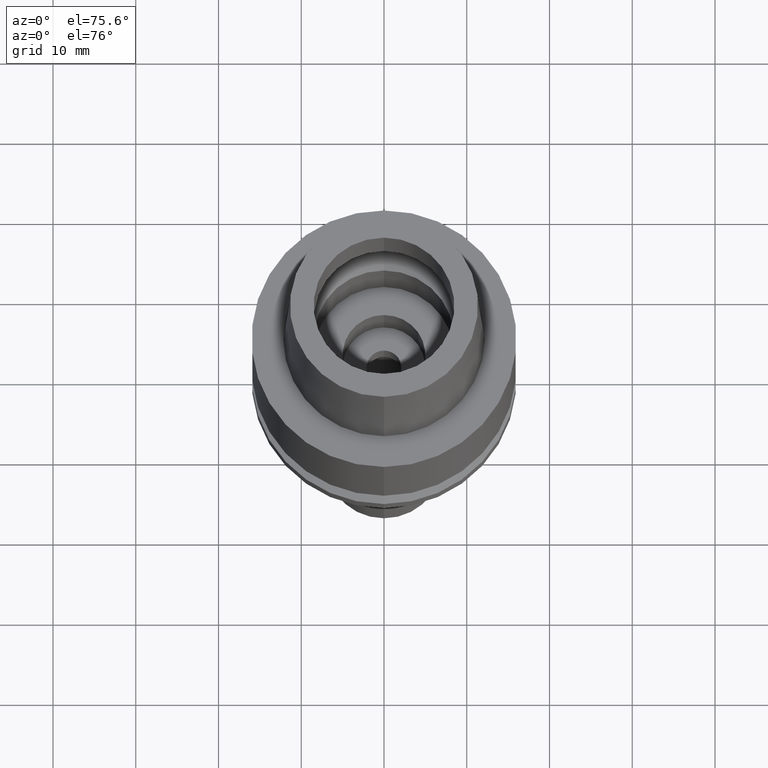
[diagram: clean part render]
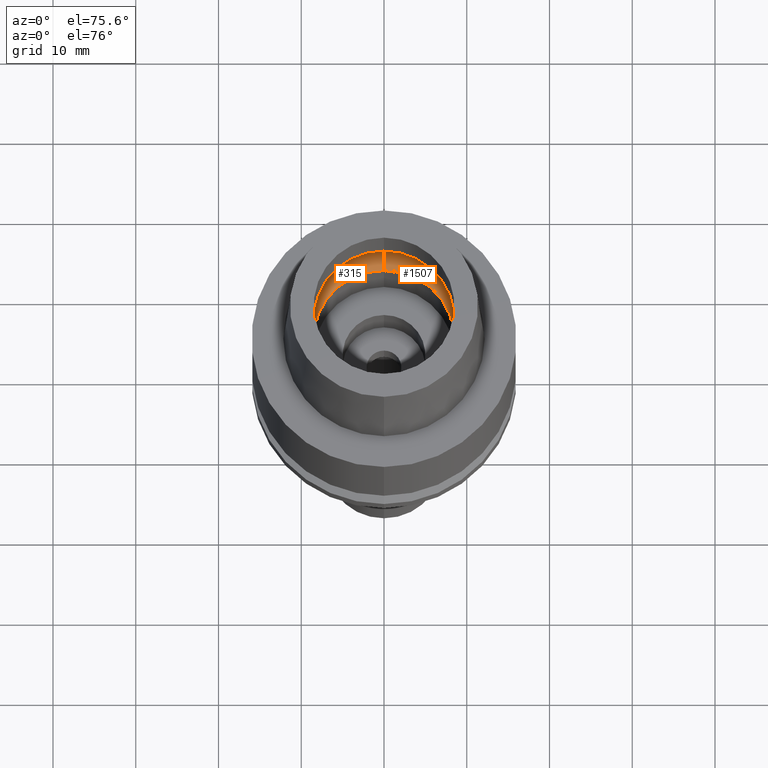
[diagram: same view with one multi-face feature highlighted, each face labeled with its STEP entity id]
A machine part, auxiliary view. The highlighted faces form ONE feature: a constant-radius fillet chain: 2 tangent blend faces with common blend radius 4 mm. The faces share edges in the B-rep.
Their STEP definitions:
[1] entity #315 (Torus):
#6 = DIRECTION ( 'NONE',  ( 0.0000000000000000000, 1.000000000000000000, 0.0000000000000000000 ) ) ;
#24 = AXIS2_PLACEMENT_3D ( 'NONE', #837, #27, #1280 ) ;
#27 = DIRECTION ( 'NONE',  ( 0.0000000000000000000, 0.0000000000000000000, -1.000000000000000000 ) ) ;
#152 = EDGE_CURVE ( 'NONE', #1933, #1988, #190, .T. ) ;
#165 = DIRECTION ( 'NONE',  ( -1.000000000000000000, 0.0000000000000000000, 0.0000000000000000000 ) ) ;
#190 = CIRCLE ( 'NONE', #1328, 3.999999999999999112 ) ;
#206 = ORIENTED_EDGE ( 'NONE', *, *, #1881, .F. ) ;
#315 = ADVANCED_FACE ( 'NONE', ( #2122 ), #1470, .F. ) ;
#353 = EDGE_CURVE ( 'NONE', #1540, #1988, #1248, .T. ) ;
#355 = DIRECTION ( 'NONE',  ( 0.0000000000000000000, 1.000000000000000000, 0.0000000000000000000 ) ) ;
#579 = DIRECTION ( 'NONE',  ( 0.0000000000000000000, -0.5624999999999932276, -0.8267972847076892062 ) ) ;
#596 = CIRCLE ( 'NONE', #959, 8.500000000000000000 ) ;
#662 = ORIENTED_EDGE ( 'NONE', *, *, #353, .F. ) ;
#817 = AXIS2_PLACEMENT_3D ( 'NONE', #2487, #873, #6 ) ;
#837 = CARTESIAN_POINT ( 'NONE',  ( 0.0000000000000000000, 0.0000000000000000000, 3.357000000000000206 ) ) ;
#873 = DIRECTION ( 'NONE',  ( 0.0000000000000000000, 0.0000000000000000000, 1.000000000000000000 ) ) ;
#959 = AXIS2_PLACEMENT_3D ( 'NONE', #1767, #2577, #355 ) ;
#1093 = EDGE_LOOP ( 'NONE', ( #662, #1330, #206, #1265 ) ) ;
#1186 = CARTESIAN_POINT ( 'NONE',  ( 0.0000000000000000000, -8.500000000000000000, 0.04981086116928999663 ) ) ;
#1240 = AXIS2_PLACEMENT_3D ( 'NONE', #1442, #165, #579 ) ;
#1248 = CIRCLE ( 'NONE', #24, 10.25000000000000000 ) ;
#1265 = ORIENTED_EDGE ( 'NONE', *, *, #152, .T. ) ;
#1280 = DIRECTION ( 'NONE',  ( 0.0000000000000000000, -1.000000000000000000, 0.0000000000000000000 ) ) ;
#1328 = AXIS2_PLACEMENT_3D ( 'NONE', #2643, #2232, #1393 ) ;
#1330 = ORIENTED_EDGE ( 'NONE', *, *, #2168, .F. ) ;
#1345 = CARTESIAN_POINT ( 'NONE',  ( 0.0000000000000000000, 8.500000000000000000, 0.04981086116927999768 ) ) ;
#1393 = DIRECTION ( 'NONE',  ( 0.0000000000000000000, 0.5624999999999932276, -0.8267972847076892062 ) ) ;
#1442 = CARTESIAN_POINT ( 'NONE',  ( 0.0000000000000000000, -6.250000000000000000, 3.357000000000000206 ) ) ;
#1470 = TOROIDAL_SURFACE ( 'NONE', #817, 6.250000000000000000, 4.000000000000000000 ) ;
#1540 = VERTEX_POINT ( 'NONE', #1725 ) ;
#1725 = CARTESIAN_POINT ( 'NONE',  ( 0.0000000000000000000, -10.25000000000000000, 3.357000000000000206 ) ) ;
#1767 = CARTESIAN_POINT ( 'NONE',  ( 0.0000000000000000000, 0.0000000000000000000, 0.04981086116928999663 ) ) ;
#1821 = CIRCLE ( 'NONE', #1240, 3.999999999999999112 ) ;
#1881 = EDGE_CURVE ( 'NONE', #1933, #1945, #596, .T. ) ;
#1933 = VERTEX_POINT ( 'NONE', #1345 ) ;
#1945 = VERTEX_POINT ( 'NONE', #1186 ) ;
#1988 = VERTEX_POINT ( 'NONE', #2036 ) ;
#2036 = CARTESIAN_POINT ( 'NONE',  ( 0.0000000000000000000, 10.25000000000000000, 3.357000000000000206 ) ) ;
#2122 = FACE_OUTER_BOUND ( 'NONE', #1093, .T. ) ;
#2168 = EDGE_CURVE ( 'NONE', #1945, #1540, #1821, .T. ) ;
#2232 = DIRECTION ( 'NONE',  ( 1.000000000000000000, 0.0000000000000000000, 0.0000000000000000000 ) ) ;
#2487 = CARTESIAN_POINT ( 'NONE',  ( 0.0000000000000000000, 0.0000000000000000000, 3.357000000000000206 ) ) ;
#2577 = DIRECTION ( 'NONE',  ( 0.0000000000000000000, 0.0000000000000000000, 1.000000000000000000 ) ) ;
#2643 = CARTESIAN_POINT ( 'NONE',  ( 0.0000000000000000000, 6.250000000000000000, 3.357000000000000206 ) ) ;
[2] entity #1507 (Torus):
#26 = CIRCLE ( 'NONE', #776, 8.500000000000000000 ) ;
#50 = EDGE_CURVE ( 'NONE', #1988, #1540, #630, .T. ) ;
#112 = EDGE_LOOP ( 'NONE', ( #248, #2204, #1533, #574 ) ) ;
#152 = EDGE_CURVE ( 'NONE', #1933, #1988, #190, .T. ) ;
#165 = DIRECTION ( 'NONE',  ( -1.000000000000000000, 0.0000000000000000000, 0.0000000000000000000 ) ) ;
#190 = CIRCLE ( 'NONE', #1328, 3.999999999999999112 ) ;
#248 = ORIENTED_EDGE ( 'NONE', *, *, #1286, .F. ) ;
#393 = CARTESIAN_POINT ( 'NONE',  ( 0.0000000000000000000, 0.0000000000000000000, 0.04981086116928999663 ) ) ;
#574 = ORIENTED_EDGE ( 'NONE', *, *, #152, .F. ) ;
#579 = DIRECTION ( 'NONE',  ( 0.0000000000000000000, -0.5624999999999932276, -0.8267972847076892062 ) ) ;
#630 = CIRCLE ( 'NONE', #1466, 10.25000000000000000 ) ;
#653 = FACE_OUTER_BOUND ( 'NONE', #112, .T. ) ;
#760 = DIRECTION ( 'NONE',  ( 0.0000000000000000000, 1.000000000000000000, 0.0000000000000000000 ) ) ;
#776 = AXIS2_PLACEMENT_3D ( 'NONE', #393, #2454, #1209 ) ;
#900 = TOROIDAL_SURFACE ( 'NONE', #1294, 6.250000000000000000, 4.000000000000000000 ) ;
#1174 = DIRECTION ( 'NONE',  ( 0.0000000000000000000, 0.0000000000000000000, -1.000000000000000000 ) ) ;
#1186 = CARTESIAN_POINT ( 'NONE',  ( 0.0000000000000000000, -8.500000000000000000, 0.04981086116928999663 ) ) ;
#1209 = DIRECTION ( 'NONE',  ( 0.0000000000000000000, -1.000000000000000000, 0.0000000000000000000 ) ) ;
#1240 = AXIS2_PLACEMENT_3D ( 'NONE', #1442, #165, #579 ) ;
#1286 = EDGE_CURVE ( 'NONE', #1945, #1933, #26, .T. ) ;
#1294 = AXIS2_PLACEMENT_3D ( 'NONE', #2515, #1479, #1894 ) ;
#1328 = AXIS2_PLACEMENT_3D ( 'NONE', #2643, #2232, #1393 ) ;
#1345 = CARTESIAN_POINT ( 'NONE',  ( 0.0000000000000000000, 8.500000000000000000, 0.04981086116927999768 ) ) ;
#1393 = DIRECTION ( 'NONE',  ( 0.0000000000000000000, 0.5624999999999932276, -0.8267972847076892062 ) ) ;
#1442 = CARTESIAN_POINT ( 'NONE',  ( 0.0000000000000000000, -6.250000000000000000, 3.357000000000000206 ) ) ;
#1466 = AXIS2_PLACEMENT_3D ( 'NONE', #1803, #1174, #760 ) ;
#1479 = DIRECTION ( 'NONE',  ( 0.0000000000000000000, 0.0000000000000000000, 1.000000000000000000 ) ) ;
#1507 = ADVANCED_FACE ( 'NONE', ( #653 ), #900, .F. ) ;
#1533 = ORIENTED_EDGE ( 'NONE', *, *, #50, .F. ) ;
#1540 = VERTEX_POINT ( 'NONE', #1725 ) ;
#1725 = CARTESIAN_POINT ( 'NONE',  ( 0.0000000000000000000, -10.25000000000000000, 3.357000000000000206 ) ) ;
#1803 = CARTESIAN_POINT ( 'NONE',  ( 0.0000000000000000000, 0.0000000000000000000, 3.357000000000000206 ) ) ;
#1821 = CIRCLE ( 'NONE', #1240, 3.999999999999999112 ) ;
#1894 = DIRECTION ( 'NONE',  ( 0.0000000000000000000, 1.000000000000000000, 0.0000000000000000000 ) ) ;
#1933 = VERTEX_POINT ( 'NONE', #1345 ) ;
#1945 = VERTEX_POINT ( 'NONE', #1186 ) ;
#1988 = VERTEX_POINT ( 'NONE', #2036 ) ;
#2036 = CARTESIAN_POINT ( 'NONE',  ( 0.0000000000000000000, 10.25000000000000000, 3.357000000000000206 ) ) ;
#2168 = EDGE_CURVE ( 'NONE', #1945, #1540, #1821, .T. ) ;
#2204 = ORIENTED_EDGE ( 'NONE', *, *, #2168, .T. ) ;
#2232 = DIRECTION ( 'NONE',  ( 1.000000000000000000, 0.0000000000000000000, 0.0000000000000000000 ) ) ;
#2454 = DIRECTION ( 'NONE',  ( 0.0000000000000000000, 0.0000000000000000000, 1.000000000000000000 ) ) ;
#2515 = CARTESIAN_POINT ( 'NONE',  ( 0.0000000000000000000, 0.0000000000000000000, 3.357000000000000206 ) ) ;
#2643 = CARTESIAN_POINT ( 'NONE',  ( 0.0000000000000000000, 6.250000000000000000, 3.357000000000000206 ) ) ;